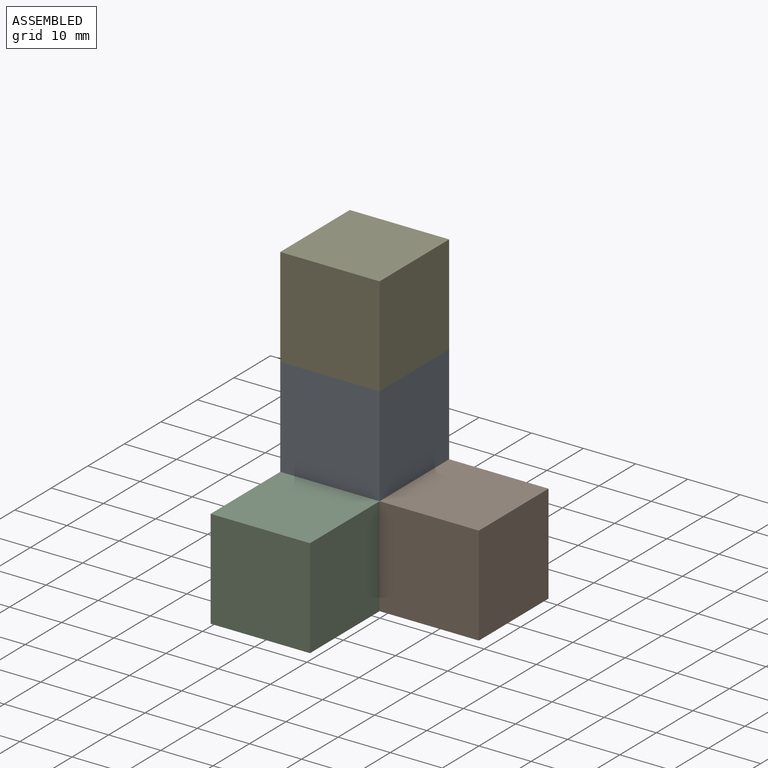
[diagram: assembled view]
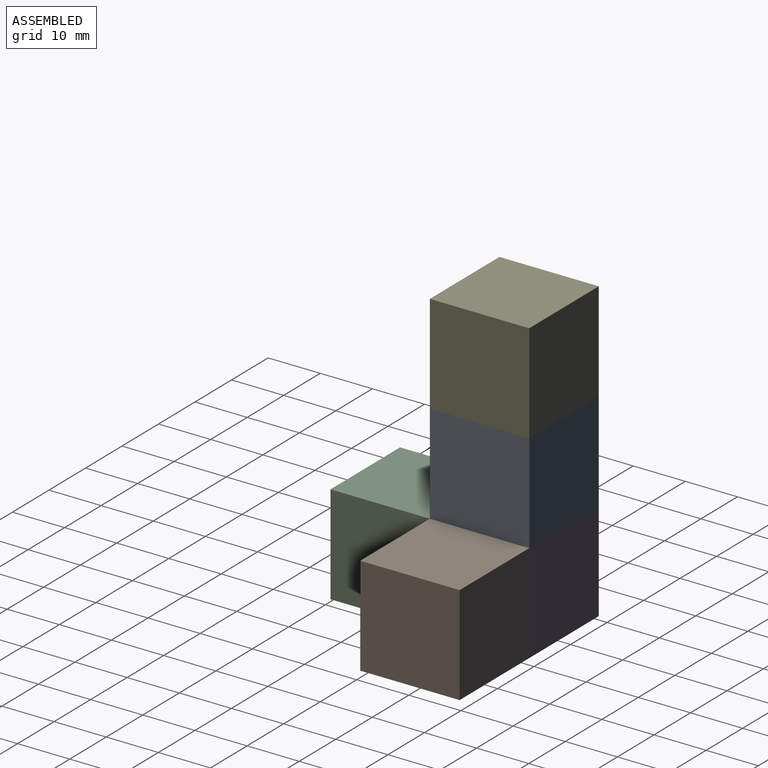
[diagram: assembled view, second angle]
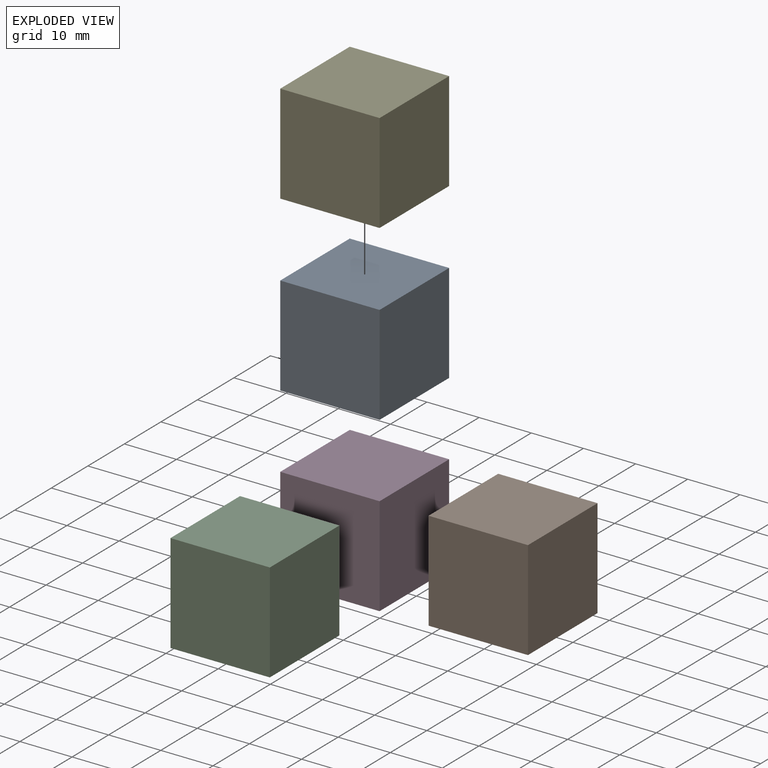
[diagram: exploded view]
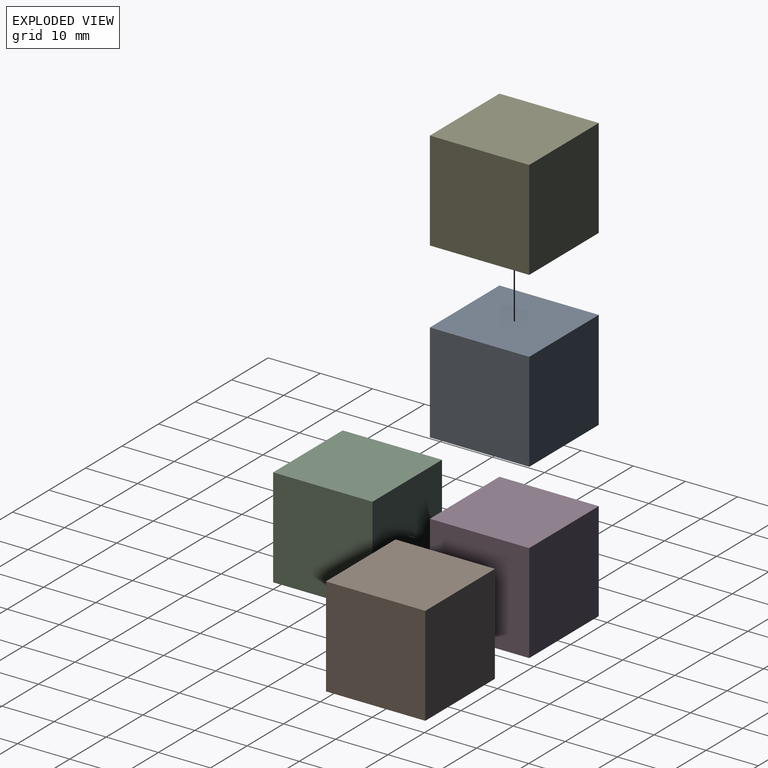
[diagram: exploded view, second angle]
ASSEMBLY  parts=5 mates=4
PART A: 6 faces, bbox 19.1x19.1x19.1 mm
  f0: plane 19.05x19.05mm, normal (0,0,-1), area 362.9mm2, adj f1,f3,f4,f5
  f1: plane 19.05x19.05mm, normal (1,0,0), area 362.9mm2, adj f0,f2,f4,f5
  f2: plane 19.05x19.05mm, normal (0,0,1), area 362.9mm2, adj f1,f3,f4,f5
  f3: plane 19.05x19.05mm, normal (-1,0,0), area 362.9mm2, adj f0,f2,f4,f5
  f4: plane 19.05x19.05mm, normal (0,-1,0), area 362.9mm2, adj f0,f1,f2,f3
  f5: plane 19.05x19.05mm, normal (0,1,0), area 362.9mm2, adj f0,f1,f2,f3
PART B: same geometry as A
PART C: same geometry as A
PART D: same geometry as A
PART E: same geometry as A
PLACE A t=(-9.58,19.05,13.78)mm
PLACE B t=(9.47,19.05,-5.27)mm
PLACE C t=(-9.58,0,-5.27)mm
PLACE D t=(-9.58,19.05,-5.27)mm
PLACE E t=(-9.58,19.05,32.83)mm
MATE fastened B.f3 <-> D.f1  axis (-1,0,0) through (-0.06,9.52,-5.27)mm
MATE fastened A.f0 <-> D.f2  axis (0,0,-1) through (-9.58,9.52,4.25)mm
MATE fastened D.f4 <-> C.f5  axis (0,-1,0) through (-9.58,0,-5.27)mm
MATE fastened A.f2 <-> E.f0  axis (0,0,1) through (-9.58,9.52,23.3)mm
